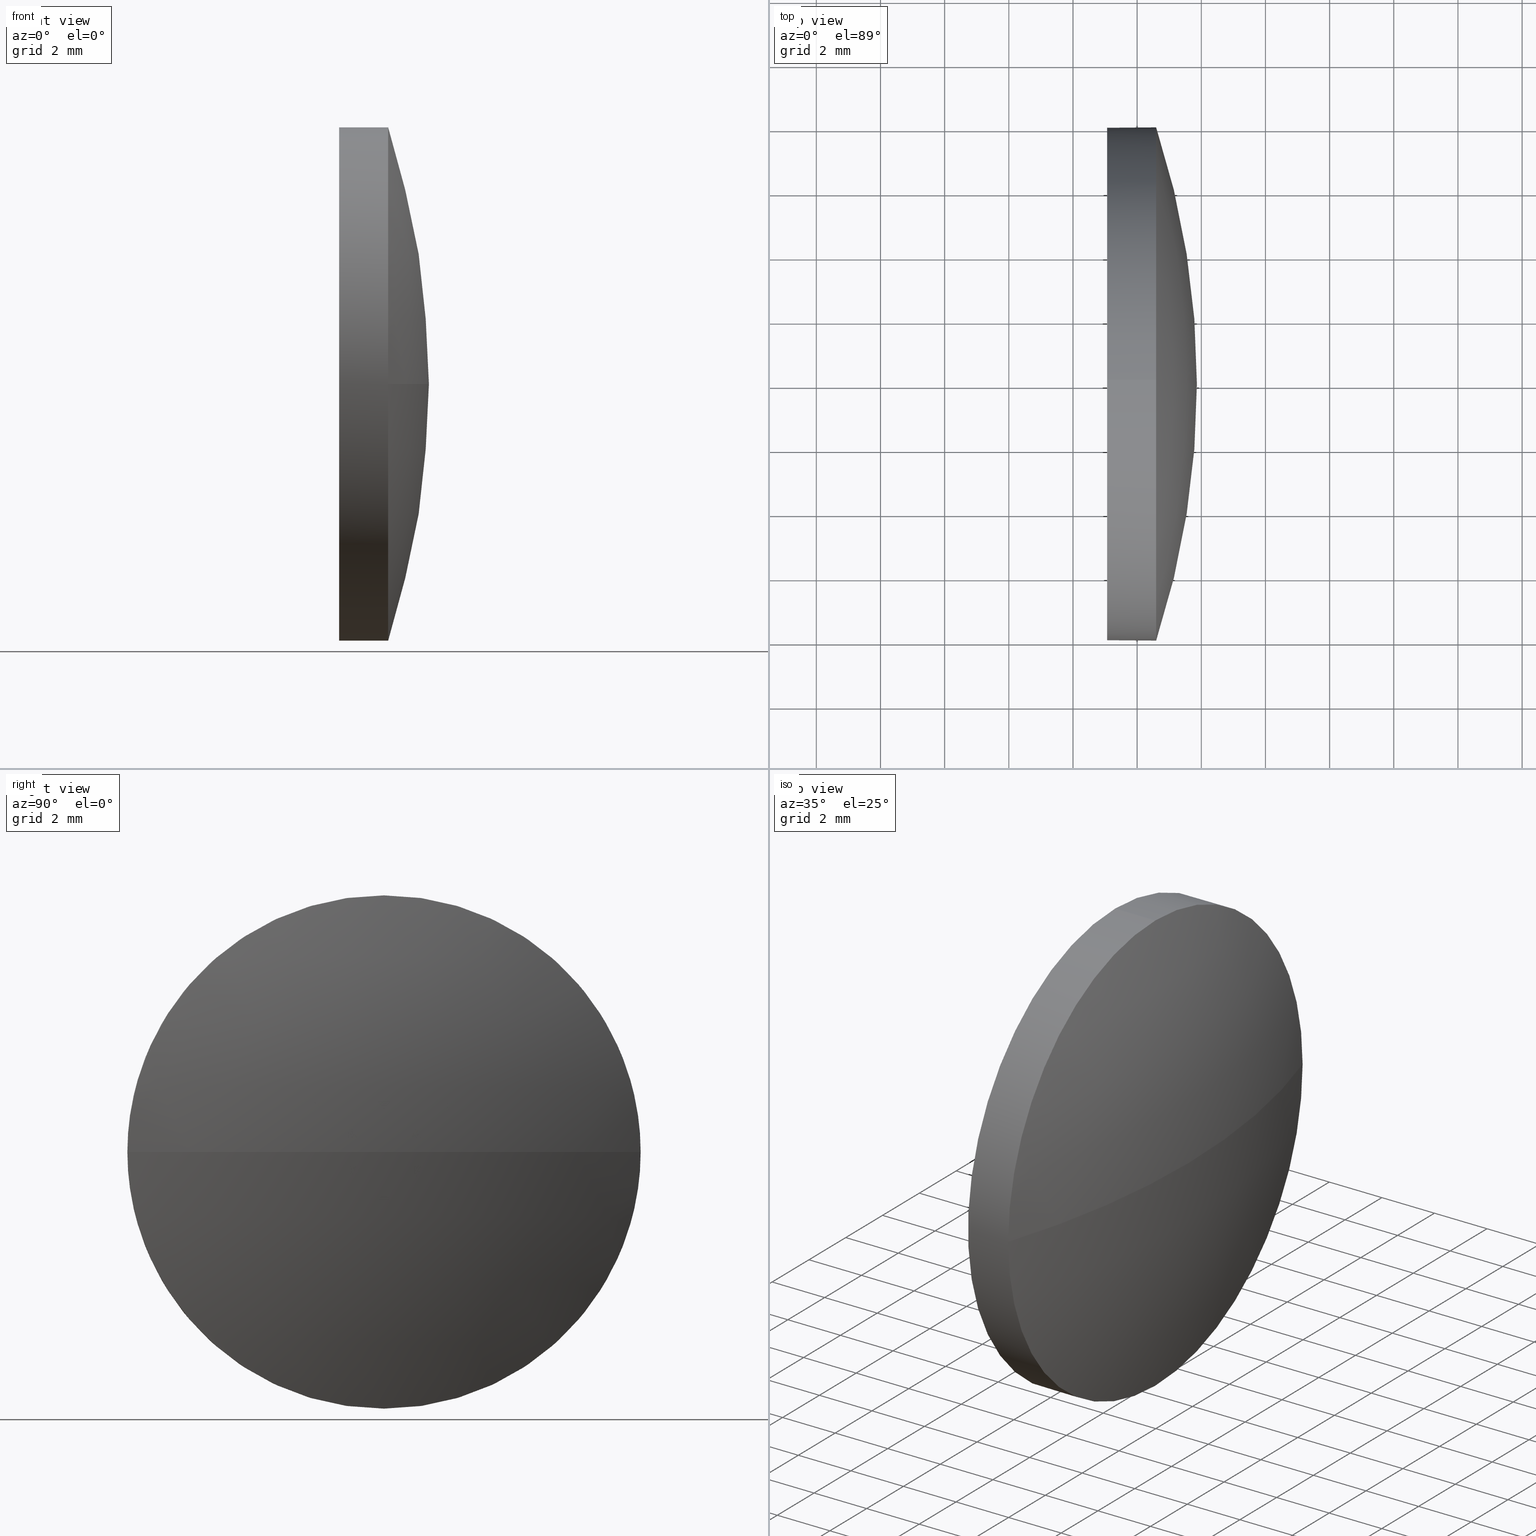
[diagram: canonical four-view strip — front | top / right | iso, engineering-drawing reading convention]
A machine part, canonical four-view strip (front | top / right | iso — engineering-drawing reading convention). The complete STEP part file that produces these views, byte-faithful:
ISO-10303-21;
HEADER;
FILE_DESCRIPTION (( 'STEP AP214' ),
    '1' );
FILE_NAME ('100029.STEP',
    '2019-04-22T08:29:40',
    ( '' ),
    ( '' ),
    'SwSTEP 2.0',
    'SolidWorks 2016',
    '' );
FILE_SCHEMA (( 'AUTOMOTIVE_DESIGN' ));
ENDSEC;

DATA;
#1 = PRODUCT_DEFINITION_CONTEXT ( 'detailed design', #60, 'design' ) ;
#2 = DIRECTION ( 'NONE',  ( -0.0000000000000000000, 0.0000000000000000000, 1.000000000000000000 ) ) ;
#3 = VERTEX_POINT ( 'NONE', #49 ) ;
#4 = DIRECTION ( 'NONE',  ( 0.0000000000000000000, 0.0000000000000000000, 1.000000000000000000 ) ) ;
#5 = AXIS2_PLACEMENT_3D ( 'NONE', #184, #137, #86 ) ;
#6 = DIRECTION ( 'NONE',  ( -0.0000000000000000000, 0.0000000000000000000, -1.000000000000000000 ) ) ;
#7 = VERTEX_POINT ( 'NONE', #14 ) ;
#8 = SPHERICAL_SURFACE ( 'NONE', #79, 25.83185039370084000 ) ;
#9 = VERTEX_POINT ( 'NONE', #62 ) ;
#10 = DIRECTION ( 'NONE',  ( -1.000000000000000000, -0.0000000000000000000, -0.0000000000000000000 ) ) ;
#11 = ORIENTED_EDGE ( 'NONE', *, *, #97, .F. ) ;
#12 = SPHERICAL_SURFACE ( 'NONE', #152, 25.83185039370084000 ) ;
#13 = SURFACE_SIDE_STYLE ('',( #65 ) ) ;
#14 = CARTESIAN_POINT ( 'NONE',  ( 684.5935508571371900, 205.9901794315100300, -7.999999999999979600 ) ) ;
#15 = EDGE_CURVE ( 'NONE', #52, #131, #73, .T. ) ;
#16 = FACE_OUTER_BOUND ( 'NONE', #96, .T. ) ;
#17 = EDGE_CURVE ( 'NONE', #121, #131, #48, .T. ) ;
#18 = LINE ( 'NONE', #156, #100 ) ;
#19 = AXIS2_PLACEMENT_3D ( 'NONE', #140, #180, #38 ) ;
#20 = PRODUCT_DEFINITION_FORMATION_WITH_SPECIFIED_SOURCE ( '�κ�', '', #185, .NOT_KNOWN. ) ;
#21 = ORIENTED_EDGE ( 'NONE', *, *, #120, .T. ) ;
#22 = PRESENTATION_LAYER_ASSIGNMENT (  '', '', ( #150 ) ) ;
#23 = ADVANCED_FACE ( 'NONE', ( #56 ), #8, .T. ) ;
#24 = CARTESIAN_POINT ( 'NONE',  ( 684.5935508571371900, 197.9901794315100300, -9.797174393178804000E-016 ) ) ;
#25 = ORIENTED_EDGE ( 'NONE', *, *, #106, .F. ) ;
#26 = CARTESIAN_POINT ( 'NONE',  ( 660.0317004634364400, 205.9901794315100300, 0.0000000000000000000 ) ) ;
#27 = DIRECTION ( 'NONE',  ( 0.0000000000000000000, 0.0000000000000000000, 1.000000000000000000 ) ) ;
#28 =( NAMED_UNIT ( * ) SI_UNIT ( $, .STERADIAN. ) SOLID_ANGLE_UNIT ( ) );
#29 = PLANE ( 'NONE',  #19 ) ;
#30 = ORIENTED_EDGE ( 'NONE', *, *, #69, .F. ) ;
#31 = PRESENTATION_STYLE_ASSIGNMENT (( #80 ) ) ;
#32 = DIRECTION ( 'NONE',  ( -0.0000000000000000000, 0.0000000000000000000, -1.000000000000000000 ) ) ;
#33 = AXIS2_PLACEMENT_3D ( 'NONE', #34, #2, #41 ) ;
#34 = CARTESIAN_POINT ( 'NONE',  ( 660.0317004634364400, 205.9901794315100300, 0.0000000000000000000 ) ) ;
#35 = PRESENTATION_STYLE_ASSIGNMENT (( #51 ) ) ;
#36 = PRODUCT_RELATED_PRODUCT_CATEGORY ( 'part', '', ( #185 ) ) ;
#37 = VECTOR ( 'NONE', #47, 1000.000000000000000 ) ;
#38 = DIRECTION ( 'NONE',  ( 0.0000000000000000000, 0.0000000000000000000, -1.000000000000000000 ) ) ;
#39 = MECHANICAL_DESIGN_GEOMETRIC_PRESENTATION_REPRESENTATION (  '', ( #113 ), #135 ) ;
#40 = CARTESIAN_POINT ( 'NONE',  ( 679.3382822367749400, 205.9901794315100300, 0.0000000000000000000 ) ) ;
#41 = DIRECTION ( 'NONE',  ( 1.000000000000000000, 0.0000000000000000000, 0.0000000000000000000 ) ) ;
#42 = AXIS2_PLACEMENT_3D ( 'NONE', #124, #45, #58 ) ;
#43 =( LENGTH_UNIT ( ) NAMED_UNIT ( * ) SI_UNIT ( .MILLI., .METRE. ) );
#44 =( GEOMETRIC_REPRESENTATION_CONTEXT ( 3 ) GLOBAL_UNCERTAINTY_ASSIGNED_CONTEXT ( ( #146 ) ) GLOBAL_UNIT_ASSIGNED_CONTEXT ( ( #101, #145, #28 ) ) REPRESENTATION_CONTEXT ( 'NONE', 'WORKASPACE' ) );
#45 = DIRECTION ( 'NONE',  ( -1.000000000000000000, -0.0000000000000000000, -0.0000000000000000000 ) ) ;
#46 = ORIENTED_EDGE ( 'NONE', *, *, #69, .T. ) ;
#47 = DIRECTION ( 'NONE',  ( -1.000000000000000000, -0.0000000000000000000, -0.0000000000000000000 ) ) ;
#48 = LINE ( 'NONE', #175, #37 ) ;
#49 = CARTESIAN_POINT ( 'NONE',  ( 684.5935508571371900, 213.9901794315100000, 0.0000000000000000000 ) ) ;
#50 = ORIENTED_EDGE ( 'NONE', *, *, #75, .F. ) ;
#51 = SURFACE_STYLE_USAGE ( .BOTH. , #13 ) ;
#52 = VERTEX_POINT ( 'NONE', #141 ) ;
#53 = DIRECTION ( 'NONE',  ( -1.000000000000000000, -0.0000000000000000000, -0.0000000000000000000 ) ) ;
#54 = AXIS2_PLACEMENT_3D ( 'NONE', #126, #172, #77 ) ;
#55 =( NAMED_UNIT ( * ) SI_UNIT ( $, .STERADIAN. ) SOLID_ANGLE_UNIT ( ) );
#56 = FACE_OUTER_BOUND ( 'NONE', #168, .T. ) ;
#57 =( NAMED_UNIT ( * ) SI_UNIT ( $, .STERADIAN. ) SOLID_ANGLE_UNIT ( ) );
#58 = DIRECTION ( 'NONE',  ( 0.0000000000000000000, 0.0000000000000000000, 1.000000000000000000 ) ) ;
#59 = EDGE_CURVE ( 'NONE', #121, #3, #104, .T. ) ;
#60 = APPLICATION_CONTEXT ( 'automotive_design' ) ;
#61 = ORIENTED_EDGE ( 'NONE', *, *, #17, .T. ) ;
#62 = CARTESIAN_POINT ( 'NONE',  ( 685.8635508571372800, 205.9901794315100300, 0.0000000000000000000 ) ) ;
#63 = DIRECTION ( 'NONE',  ( 1.000000000000000000, 0.0000000000000000000, 0.0000000000000000000 ) ) ;
#64 = DIRECTION ( 'NONE',  ( 0.0000000000000000000, 1.000000000000000000, 1.224646799147353200E-016 ) ) ;
#65 = SURFACE_STYLE_FILL_AREA ( #139 ) ;
#66 = DIRECTION ( 'NONE',  ( 0.0000000000000000000, 0.0000000000000000000, 1.000000000000000000 ) ) ;
#67 = CARTESIAN_POINT ( 'NONE',  ( 683.0635508571372200, 205.9901794315100300, 0.0000000000000000000 ) ) ;
#68 = COLOUR_RGB ( '',1.000000000000000000, 1.000000000000000000, 1.000000000000000000 ) ;
#69 = EDGE_CURVE ( 'NONE', #9, #3, #186, .T. ) ;
#70 = ORIENTED_EDGE ( 'NONE', *, *, #15, .F. ) ;
#71 = CARTESIAN_POINT ( 'NONE',  ( 684.5935508571371900, 205.9901794315100300, 0.0000000000000000000 ) ) ;
#72 = ADVANCED_FACE ( 'NONE', ( #76 ), #29, .F. ) ;
#73 = CIRCLE ( 'NONE', #54, 7.999999999999979600 ) ;
#74 = CARTESIAN_POINT ( 'NONE',  ( 684.5935508571371900, 205.9901794315100300, 7.999999999999979600 ) ) ;
#75 = EDGE_CURVE ( 'NONE', #9, #155, #149, .T. ) ;
#76 = FACE_OUTER_BOUND ( 'NONE', #117, .T. ) ;
#77 = DIRECTION ( 'NONE',  ( 0.0000000000000000000, 0.0000000000000000000, 1.000000000000000000 ) ) ;
#78 = UNCERTAINTY_MEASURE_WITH_UNIT (LENGTH_MEASURE( 1.000000000000000100E-005 ), #43, 'distance_accuracy_value', 'NONE');
#79 = AXIS2_PLACEMENT_3D ( 'NONE', #26, #32, #122 ) ;
#80 = SURFACE_STYLE_USAGE ( .BOTH. , #167 ) ;
#81 = CARTESIAN_POINT ( 'NONE',  ( 660.0317004634364400, 205.9901794315100300, 0.0000000000000000000 ) ) ;
#82 = DIRECTION ( 'NONE',  ( -1.000000000000000000, -0.0000000000000000000, -0.0000000000000000000 ) ) ;
#83 = UNCERTAINTY_MEASURE_WITH_UNIT (LENGTH_MEASURE( 1.000000000000000100E-005 ), #176, 'distance_accuracy_value', 'NONE');
#84 = ORIENTED_EDGE ( 'NONE', *, *, #15, .T. ) ;
#85 = MECHANICAL_DESIGN_GEOMETRIC_PRESENTATION_REPRESENTATION (  '', ( #150 ), #44 ) ;
#86 = DIRECTION ( 'NONE',  ( 0.0000000000000000000, 0.0000000000000000000, 1.000000000000000000 ) ) ;
#87 = DIRECTION ( 'NONE',  ( 0.0000000000000000000, 0.0000000000000000000, 1.000000000000000000 ) ) ;
#88 = APPLICATION_PROTOCOL_DEFINITION ( 'draft international standard', 'automotive_design', 1998, #162 ) ;
#89 = PRODUCT_DEFINITION_SHAPE ( 'NONE', 'NONE',  #143 ) ;
#90 = CLOSED_SHELL ( 'NONE', ( #153, #23, #110, #114, #72 ) ) ;
#91 = ORIENTED_EDGE ( 'NONE', *, *, #169, .T. ) ;
#92 = CYLINDRICAL_SURFACE ( 'NONE', #5, 7.999999999999979600 ) ;
#93 =( NAMED_UNIT ( * ) PLANE_ANGLE_UNIT ( ) SI_UNIT ( $, .RADIAN. ) );
#94 = ORIENTED_EDGE ( 'NONE', *, *, #17, .F. ) ;
#95 = DIRECTION ( 'NONE',  ( -1.000000000000000000, -0.0000000000000000000, -0.0000000000000000000 ) ) ;
#96 = EDGE_LOOP ( 'NONE', ( #50, #46, #99, #157 ) ) ;
#97 = EDGE_CURVE ( 'NONE', #131, #52, #107, .T. ) ;
#98 = EDGE_LOOP ( 'NONE', ( #165, #21, #11, #94, #111 ) ) ;
#99 = ORIENTED_EDGE ( 'NONE', *, *, #59, .F. ) ;
#100 = VECTOR ( 'NONE', #170, 1000.000000000000000 ) ;
#101 =( LENGTH_UNIT ( ) NAMED_UNIT ( * ) SI_UNIT ( .MILLI., .METRE. ) );
#102 = ORIENTED_EDGE ( 'NONE', *, *, #133, .F. ) ;
#103 = AXIS2_PLACEMENT_3D ( 'NONE', #40, #53, #66 ) ;
#104 = CIRCLE ( 'NONE', #42, 7.999999999999979600 ) ;
#105 = DIRECTION ( 'NONE',  ( 0.0000000000000000000, 0.0000000000000000000, 1.000000000000000000 ) ) ;
#106 = EDGE_CURVE ( 'NONE', #7, #155, #181, .T. ) ;
#107 = CIRCLE ( 'NONE', #112, 7.999999999999979600 ) ;
#108 = DIRECTION ( 'NONE',  ( 0.0000000000000000000, 1.000000000000000000, 0.0000000000000000000 ) ) ;
#109 = CIRCLE ( 'NONE', #183, 7.999999999999979600 ) ;
#110 = ADVANCED_FACE ( 'NONE', ( #16 ), #12, .T. ) ;
#111 = ORIENTED_EDGE ( 'NONE', *, *, #59, .T. ) ;
#112 = AXIS2_PLACEMENT_3D ( 'NONE', #67, #82, #4 ) ;
#113 = STYLED_ITEM ( 'NONE', ( #31 ), #116 ) ;
#114 = ADVANCED_FACE ( 'NONE', ( #128 ), #174, .T. ) ;
#115 = DIRECTION ( 'NONE',  ( -1.000000000000000000, -0.0000000000000000000, -0.0000000000000000000 ) ) ;
#116 = MANIFOLD_SOLID_BREP ( '��ת1', #90 ) ;
#117 = EDGE_LOOP ( 'NONE', ( #147, #84 ) ) ;
#118 = DIRECTION ( 'NONE',  ( 0.0000000000000000000, 0.0000000000000000000, 1.000000000000000000 ) ) ;
#119 = ORIENTED_EDGE ( 'NONE', *, *, #75, .T. ) ;
#120 = EDGE_CURVE ( 'NONE', #7, #52, #18, .T. ) ;
#121 = VERTEX_POINT ( 'NONE', #74 ) ;
#122 = DIRECTION ( 'NONE',  ( 0.0000000000000000000, 1.000000000000000000, 0.0000000000000000000 ) ) ;
#123 =( NAMED_UNIT ( * ) PLANE_ANGLE_UNIT ( ) SI_UNIT ( $, .RADIAN. ) );
#124 = CARTESIAN_POINT ( 'NONE',  ( 684.5935508571371900, 205.9901794315100300, 0.0000000000000000000 ) ) ;
#125 = APPLICATION_PROTOCOL_DEFINITION ( 'draft international standard', 'automotive_design', 1998, #60 ) ;
#126 = CARTESIAN_POINT ( 'NONE',  ( 683.0635508571372200, 205.9901794315100300, 0.0000000000000000000 ) ) ;
#127 = CARTESIAN_POINT ( 'NONE',  ( 660.0317004634364400, 205.9901794315100300, 0.0000000000000000000 ) ) ;
#128 = FACE_OUTER_BOUND ( 'NONE', #151, .T. ) ;
#129 = CARTESIAN_POINT ( 'NONE',  ( 684.5935508571371900, 205.9901794315100300, 0.0000000000000000000 ) ) ;
#130 = DIRECTION ( 'NONE',  ( 0.0000000000000000000, 1.224646799147353200E-016, -1.000000000000000000 ) ) ;
#131 = VERTEX_POINT ( 'NONE', #166 ) ;
#132 = AXIS2_PLACEMENT_3D ( 'NONE', #136, #118, #63 ) ;
#133 = EDGE_CURVE ( 'NONE', #3, #7, #142, .T. ) ;
#134 = ADVANCED_BREP_SHAPE_REPRESENTATION ( '100029', ( #116, #132 ), #178 ) ;
#135 =( GEOMETRIC_REPRESENTATION_CONTEXT ( 3 ) GLOBAL_UNCERTAINTY_ASSIGNED_CONTEXT ( ( #83 ) ) GLOBAL_UNIT_ASSIGNED_CONTEXT ( ( #176, #93, #55 ) ) REPRESENTATION_CONTEXT ( 'NONE', 'WORKASPACE' ) );
#136 = CARTESIAN_POINT ( 'NONE',  ( 0.0000000000000000000, 0.0000000000000000000, 0.0000000000000000000 ) ) ;
#137 = DIRECTION ( 'NONE',  ( -1.000000000000000000, -0.0000000000000000000, -0.0000000000000000000 ) ) ;
#138 = FILL_AREA_STYLE_COLOUR ( '', #179 ) ;
#139 = FILL_AREA_STYLE ('',( #138 ) ) ;
#140 = CARTESIAN_POINT ( 'NONE',  ( 683.0635508571372200, 205.9901794315100300, 0.0000000000000000000 ) ) ;
#141 = CARTESIAN_POINT ( 'NONE',  ( 683.0635508571372200, 205.9901794315100300, -7.999999999999979600 ) ) ;
#142 = CIRCLE ( 'NONE', #173, 7.999999999999979600 ) ;
#143 = PRODUCT_DEFINITION ( 'δ֪', '', #20, #1 ) ;
#144 = FACE_OUTER_BOUND ( 'NONE', #98, .T. ) ;
#145 =( NAMED_UNIT ( * ) PLANE_ANGLE_UNIT ( ) SI_UNIT ( $, .RADIAN. ) );
#146 = UNCERTAINTY_MEASURE_WITH_UNIT (LENGTH_MEASURE( 1.000000000000000100E-005 ), #101, 'distance_accuracy_value', 'NONE');
#147 = ORIENTED_EDGE ( 'NONE', *, *, #97, .T. ) ;
#148 = FILL_AREA_STYLE_COLOUR ( '', #68 ) ;
#149 = CIRCLE ( 'NONE', #160, 25.83185039370084000 ) ;
#150 = STYLED_ITEM ( 'NONE', ( #35 ), #134 ) ;
#151 = EDGE_LOOP ( 'NONE', ( #182, #177, #91, #61, #70 ) ) ;
#152 = AXIS2_PLACEMENT_3D ( 'NONE', #127, #6, #108 ) ;
#153 = ADVANCED_FACE ( 'NONE', ( #144 ), #92, .T. ) ;
#154 = CARTESIAN_POINT ( 'NONE',  ( 684.5935508571371900, 205.9901794315100300, 0.0000000000000000000 ) ) ;
#155 = VERTEX_POINT ( 'NONE', #24 ) ;
#156 = CARTESIAN_POINT ( 'NONE',  ( 679.3382822367749400, 205.9901794315100300, -7.999999999999979600 ) ) ;
#157 = ORIENTED_EDGE ( 'NONE', *, *, #169, .F. ) ;
#158 = SURFACE_STYLE_FILL_AREA ( #163 ) ;
#159 = AXIS2_PLACEMENT_3D ( 'NONE', #129, #95, #105 ) ;
#160 = AXIS2_PLACEMENT_3D ( 'NONE', #81, #130, #64 ) ;
#161 = PRODUCT_CONTEXT ( 'NONE', #162, 'mechanical' ) ;
#162 = APPLICATION_CONTEXT ( 'automotive_design' ) ;
#163 = FILL_AREA_STYLE ('',( #148 ) ) ;
#164 = PRESENTATION_LAYER_ASSIGNMENT (  '', '', ( #113 ) ) ;
#165 = ORIENTED_EDGE ( 'NONE', *, *, #133, .T. ) ;
#166 = CARTESIAN_POINT ( 'NONE',  ( 683.0635508571372200, 205.9901794315100300, 7.999999999999979600 ) ) ;
#167 = SURFACE_SIDE_STYLE ('',( #158 ) ) ;
#168 = EDGE_LOOP ( 'NONE', ( #30, #119, #25, #102 ) ) ;
#169 = EDGE_CURVE ( 'NONE', #155, #121, #109, .T. ) ;
#170 = DIRECTION ( 'NONE',  ( -1.000000000000000000, -0.0000000000000000000, -0.0000000000000000000 ) ) ;
#171 = SHAPE_DEFINITION_REPRESENTATION ( #89, #134 ) ;
#172 = DIRECTION ( 'NONE',  ( -1.000000000000000000, -0.0000000000000000000, -0.0000000000000000000 ) ) ;
#173 = AXIS2_PLACEMENT_3D ( 'NONE', #154, #115, #27 ) ;
#174 = CYLINDRICAL_SURFACE ( 'NONE', #103, 7.999999999999979600 ) ;
#175 = CARTESIAN_POINT ( 'NONE',  ( 679.3382822367749400, 205.9901794315100300, 7.999999999999979600 ) ) ;
#176 =( LENGTH_UNIT ( ) NAMED_UNIT ( * ) SI_UNIT ( .MILLI., .METRE. ) );
#177 = ORIENTED_EDGE ( 'NONE', *, *, #106, .T. ) ;
#178 =( GEOMETRIC_REPRESENTATION_CONTEXT ( 3 ) GLOBAL_UNCERTAINTY_ASSIGNED_CONTEXT ( ( #78 ) ) GLOBAL_UNIT_ASSIGNED_CONTEXT ( ( #43, #123, #57 ) ) REPRESENTATION_CONTEXT ( 'NONE', 'WORKASPACE' ) );
#179 = COLOUR_RGB ( '',1.000000000000000000, 1.000000000000000000, 1.000000000000000000 ) ;
#180 = DIRECTION ( 'NONE',  ( 1.000000000000000000, 0.0000000000000000000, 0.0000000000000000000 ) ) ;
#181 = CIRCLE ( 'NONE', #159, 7.999999999999979600 ) ;
#182 = ORIENTED_EDGE ( 'NONE', *, *, #120, .F. ) ;
#183 = AXIS2_PLACEMENT_3D ( 'NONE', #71, #10, #87 ) ;
#184 = CARTESIAN_POINT ( 'NONE',  ( 679.3382822367749400, 205.9901794315100300, 0.0000000000000000000 ) ) ;
#185 = PRODUCT ( '100029', '100029', '', ( #161 ) ) ;
#186 = CIRCLE ( 'NONE', #33, 25.83185039370084000 ) ;
ENDSEC;
END-ISO-10303-21;
